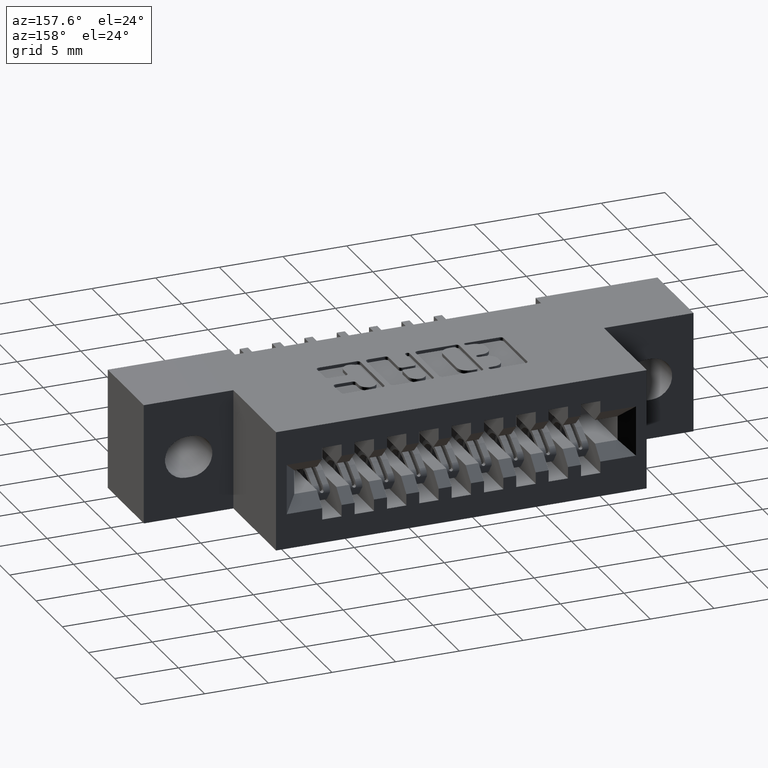
[diagram: clean part render]
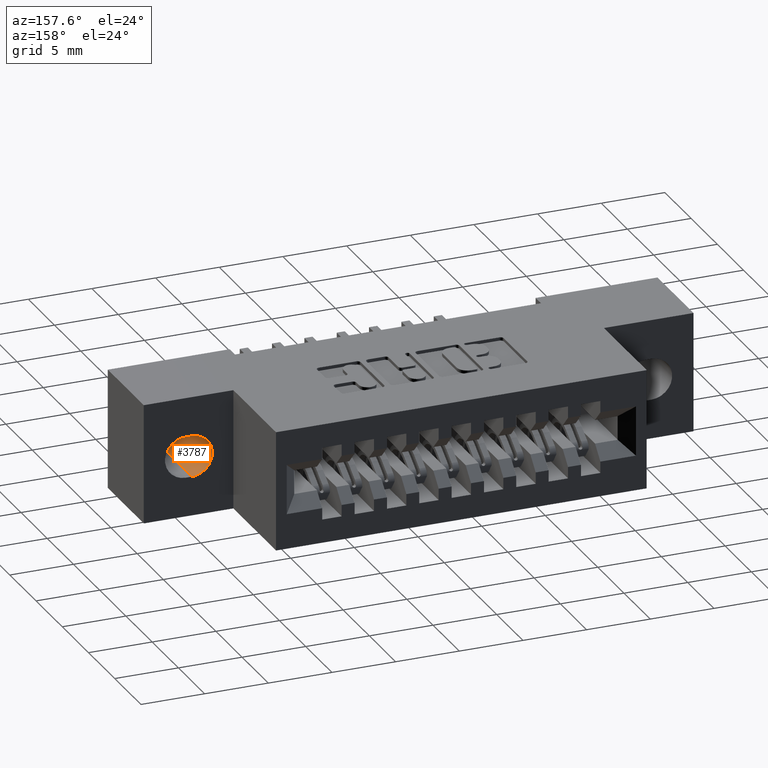
[diagram: same view with one face highlighted and labeled with its STEP entity id]
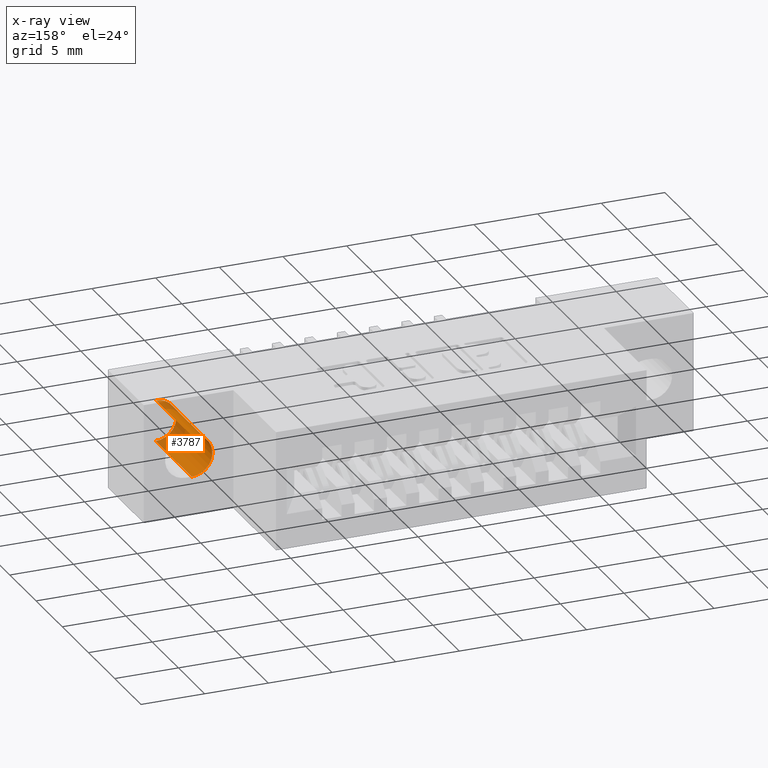
[diagram: x-ray of the same camera — body ghosted, the highlighted face saturated]
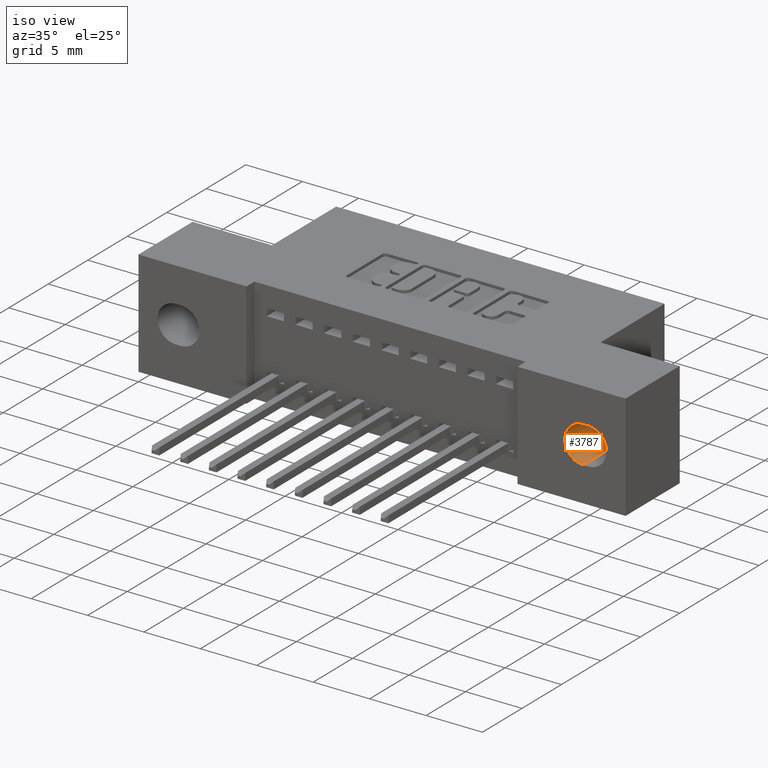
[diagram: same view with one face highlighted and labeled with its STEP entity id]
A machine part, auxiliary view. The second image highlights one B-rep face of the part: STEP entity #3787.
The next image is the same camera in x-ray: the body ghosted, the highlighted face saturated — about 22% of this face is hidden behind the body in this view.
A second angle (iso view) of the same face is appended — the face is thin or edge-on in the first view.
In plain terms, the highlighted cylindrical surface (edge-blend (fillet) strip) has radius 1.6256 mm, axis along (0, 1, 0).
Its self-contained STEP definition (entity closure, byte-faithful):
#46 = VERTEX_POINT ( 'NONE', #7497 ) ;
#75 = FACE_OUTER_BOUND ( 'NONE', #6193, .T. ) ;
#189 = DIRECTION ( 'NONE',  ( 0.0000000000000000000, 1.000000000000000000, -0.0000000000000000000 ) ) ;
#484 = DIRECTION ( 'NONE',  ( -0.0000000000000000000, 1.000000000000000000, -0.0000000000000000000 ) ) ;
#987 = CIRCLE ( 'NONE', #1457, 0.06399999999999982100 ) ;
#1240 = EDGE_CURVE ( 'NONE', #46, #6686, #1843, .T. ) ;
#1270 = EDGE_CURVE ( 'NONE', #2530, #6686, #5272, .T. ) ;
#1350 = VECTOR ( 'NONE', #2524, 39.37007874015748100 ) ;
#1457 = AXIS2_PLACEMENT_3D ( 'NONE', #4927, #189, #5660 ) ;
#1843 = LINE ( 'NONE', #6310, #1350 ) ;
#2132 = AXIS2_PLACEMENT_3D ( 'NONE', #8850, #484, #2193 ) ;
#2193 = DIRECTION ( 'NONE',  ( 0.0000000000000000000, 0.0000000000000000000, 1.000000000000000000 ) ) ;
#2524 = DIRECTION ( 'NONE',  ( -0.0000000000000000000, 1.000000000000000000, -0.0000000000000000000 ) ) ;
#2530 = VERTEX_POINT ( 'NONE', #7076 ) ;
#3072 = DIRECTION ( 'NONE',  ( -0.0000000000000000000, 1.000000000000000000, -0.0000000000000000000 ) ) ;
#3088 = CARTESIAN_POINT ( 'NONE',  ( 1.552000000000000000, 0.0000000000000000000, -0.2489999999999996700 ) ) ;
#3190 = ORIENTED_EDGE ( 'NONE', *, *, #6783, .T. ) ;
#3535 = CARTESIAN_POINT ( 'NONE',  ( 1.552000000000000000, 0.2699999999999999600, -0.1210000000000001900 ) ) ;
#3738 = DIRECTION ( 'NONE',  ( 0.0000000000000000000, 1.000000000000000000, -0.0000000000000000000 ) ) ;
#3761 = CARTESIAN_POINT ( 'NONE',  ( 1.552000000000000500, 0.2699999999999999600, -0.1850000000000000000 ) ) ;
#3787 = ADVANCED_FACE ( 'NONE', ( #75 ), #5807, .F. ) ;
#4927 = CARTESIAN_POINT ( 'NONE',  ( 1.552000000000000500, 0.0000000000000000000, -0.1850000000000000000 ) ) ;
#5272 = CIRCLE ( 'NONE', #5624, 0.06399999999999982100 ) ;
#5624 = AXIS2_PLACEMENT_3D ( 'NONE', #3761, #3738, #9432 ) ;
#5660 = DIRECTION ( 'NONE',  ( 0.0000000000000000000, 0.0000000000000000000, -1.000000000000000000 ) ) ;
#5807 = CYLINDRICAL_SURFACE ( 'NONE', #2132, 0.06399999999999982100 ) ;
#5874 = VERTEX_POINT ( 'NONE', #7044 ) ;
#5899 = ORIENTED_EDGE ( 'NONE', *, *, #1270, .T. ) ;
#6193 = EDGE_LOOP ( 'NONE', ( #5899, #7170, #8758, #3190 ) ) ;
#6310 = CARTESIAN_POINT ( 'NONE',  ( 1.552000000000000000, 0.0000000000000000000, -0.1210000000000001900 ) ) ;
#6686 = VERTEX_POINT ( 'NONE', #3535 ) ;
#6783 = EDGE_CURVE ( 'NONE', #5874, #2530, #7742, .T. ) ;
#7044 = CARTESIAN_POINT ( 'NONE',  ( 1.552000000000000000, 0.0000000000000000000, -0.2489999999999996700 ) ) ;
#7076 = CARTESIAN_POINT ( 'NONE',  ( 1.552000000000000000, 0.2699999999999999600, -0.2489999999999996700 ) ) ;
#7170 = ORIENTED_EDGE ( 'NONE', *, *, #1240, .F. ) ;
#7497 = CARTESIAN_POINT ( 'NONE',  ( 1.552000000000000000, 0.0000000000000000000, -0.1210000000000001900 ) ) ;
#7742 = LINE ( 'NONE', #3088, #9393 ) ;
#7939 = EDGE_CURVE ( 'NONE', #5874, #46, #987, .T. ) ;
#8758 = ORIENTED_EDGE ( 'NONE', *, *, #7939, .F. ) ;
#8850 = CARTESIAN_POINT ( 'NONE',  ( 1.552000000000000500, 0.0000000000000000000, -0.1850000000000000000 ) ) ;
#9393 = VECTOR ( 'NONE', #3072, 39.37007874015748100 ) ;
#9432 = DIRECTION ( 'NONE',  ( 0.0000000000000000000, 0.0000000000000000000, -1.000000000000000000 ) ) ;